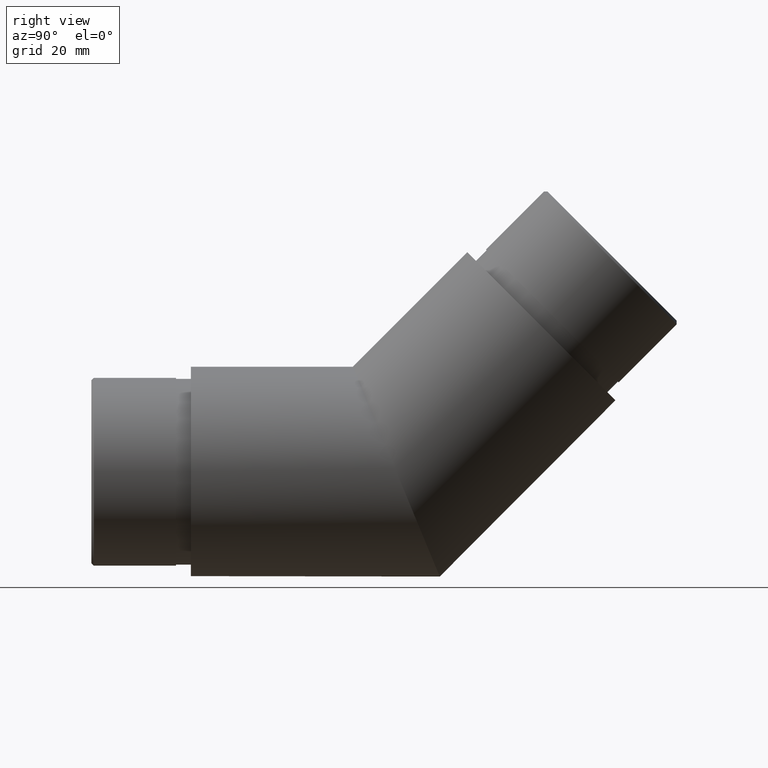
[diagram: clean part render]
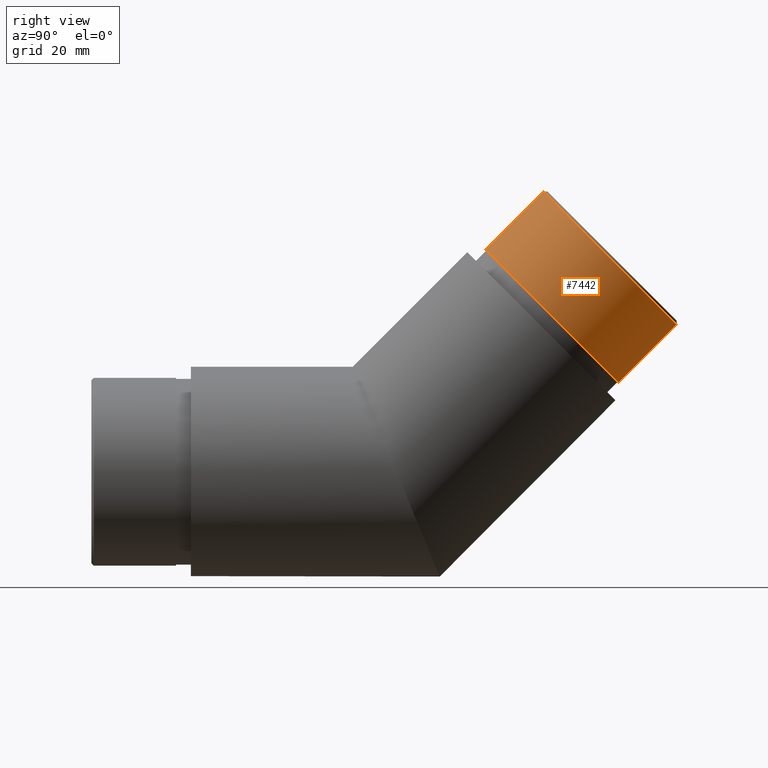
[diagram: same view with one face highlighted and labeled with its STEP entity id]
A machine part, right view. The second image highlights one B-rep face of the part: STEP entity #7442.
In plain terms, the highlighted cylindrical surface (bore or boss wall) has radius 18.85 mm, axis along (-0, -0.7071, -0.7071).
Its self-contained STEP definition (entity closure, byte-faithful):
#722 = VERTEX_POINT ( 'NONE', #7499 ) ;
#967 = CARTESIAN_POINT ( 'NONE',  ( 0.0000000000000000000, 72.55670631985081800, 31.29661248592325500 ) ) ;
#1028 = CARTESIAN_POINT ( 'NONE',  ( 0.0000000000000000000, 70.89500538406227300, 56.29283720086762300 ) ) ;
#1177 = EDGE_LOOP ( 'NONE', ( #4088 ) ) ;
#1321 = DIRECTION ( 'NONE',  ( -0.0000000000000000000, -0.7071067811865459100, -0.7071067811865492400 ) ) ;
#1393 = FACE_OUTER_BOUND ( 'NONE', #9093, .T. ) ;
#1967 = CARTESIAN_POINT ( 'NONE',  ( 0.0000000000000000000, 84.22396820942883300, 42.96387437550134100 ) ) ;
#2019 = DIRECTION ( 'NONE',  ( 0.0000000000000000000, -0.7071067811865544600, 0.7071067811865404700 ) ) ;
#2226 = AXIS2_PLACEMENT_3D ( 'NONE', #1967, #7397, #2019 ) ;
#2386 = CARTESIAN_POINT ( 'NONE',  ( 0.0000000000000000000, 84.57752160002209500, 43.31742776609459600 ) ) ;
#4088 = ORIENTED_EDGE ( 'NONE', *, *, #12793, .F. ) ;
#5056 = CYLINDRICAL_SURFACE ( 'NONE', #6297, 18.85000000000000100 ) ;
#5550 = AXIS2_PLACEMENT_3D ( 'NONE', #967, #1321, #11614 ) ;
#5817 = VERTEX_POINT ( 'NONE', #1028 ) ;
#6297 = AXIS2_PLACEMENT_3D ( 'NONE', #2386, #7826, #6658 ) ;
#6658 = DIRECTION ( 'NONE',  ( 0.0000000000000000000, 0.7071067811865492400, -0.7071067811865458000 ) ) ;
#7397 = DIRECTION ( 'NONE',  ( -0.0000000000000000000, -0.7071067811865405800, -0.7071067811865544600 ) ) ;
#7442 = ADVANCED_FACE ( 'NONE', ( #1393, #8346 ), #5056, .T. ) ;
#7499 = CARTESIAN_POINT ( 'NONE',  ( 0.0000000000000000000, 85.88566914521726400, 17.96764966055686900 ) ) ;
#7826 = DIRECTION ( 'NONE',  ( -0.0000000000000000000, -0.7071067811865459100, -0.7071067811865492400 ) ) ;
#7932 = EDGE_CURVE ( 'NONE', #5817, #5817, #9850, .T. ) ;
#8346 = FACE_OUTER_BOUND ( 'NONE', #1177, .T. ) ;
#9093 = EDGE_LOOP ( 'NONE', ( #12775 ) ) ;
#9850 = CIRCLE ( 'NONE', #2226, 18.85000000000000100 ) ;
#10930 = CIRCLE ( 'NONE', #5550, 18.85000000000000100 ) ;
#11614 = DIRECTION ( 'NONE',  ( 0.0000000000000000000, 0.7071067811865492400, -0.7071067811865455700 ) ) ;
#12775 = ORIENTED_EDGE ( 'NONE', *, *, #7932, .T. ) ;
#12793 = EDGE_CURVE ( 'NONE', #722, #722, #10930, .T. ) ;